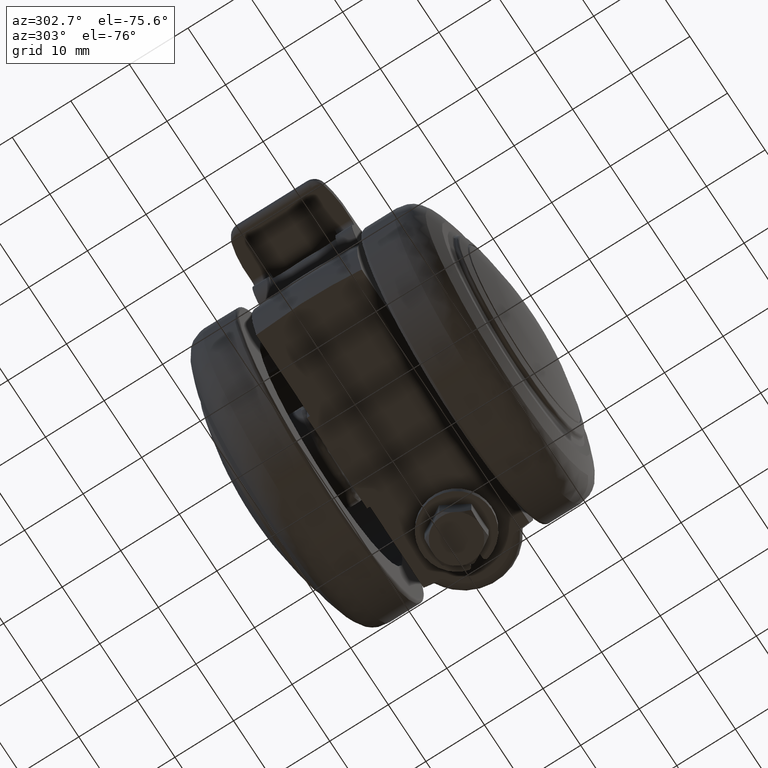
[diagram: clean part render]
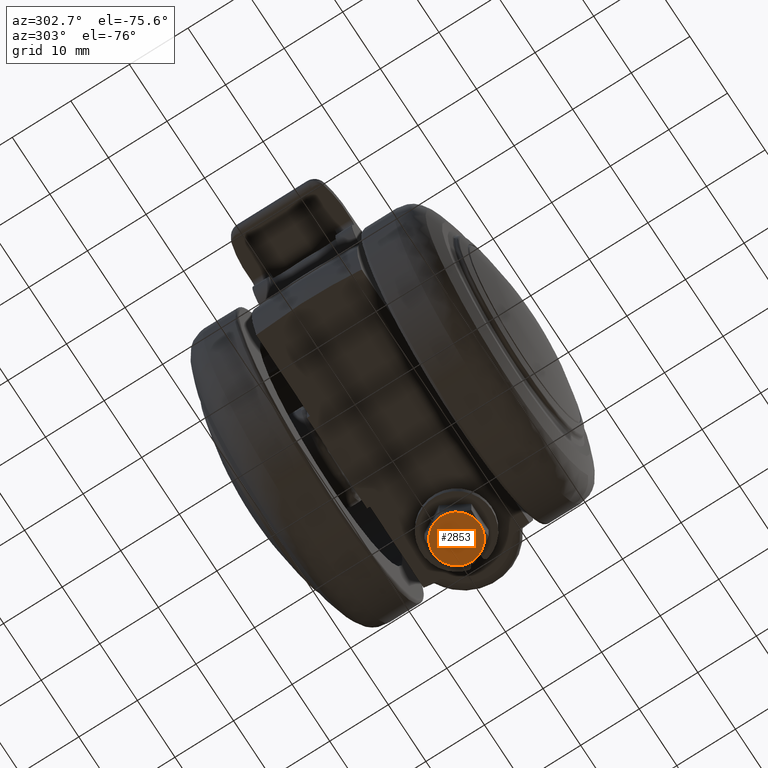
[diagram: same view with one face highlighted and labeled with its STEP entity id]
A machine part, auxiliary view. The second image highlights one B-rep face of the part: STEP entity #2853.
In plain terms, the highlighted face is a freeform B-spline surface patch.
Its self-contained STEP definition (entity closure, byte-faithful):
#2756=CARTESIAN_POINT('',(12.600400009850510,4.399599984494448,-15.500000000000000));
#2757=CARTESIAN_POINT('',(21.399599761957901,4.399599984494448,-15.500000000000000));
#2758=CARTESIAN_POINT('',(12.600400009850510,-4.399600199071169,-15.500000000000000));
#2759=CARTESIAN_POINT('',(21.399599761957901,-4.399600199071169,-15.500000000000000));
#2760=B_SPLINE_SURFACE_WITH_KNOTS('',1,1,((#2756,#2758),(#2757,#2759)),.UNSPECIFIED.,.F.,.F.,.U.,(2,2),(2,2),(0.0,8.799199752107393),(0.0,8.799200183565617),.UNSPECIFIED.);
#2761=CARTESIAN_POINT('',(13.535898442431121,-1.999999900287695,-15.500000000000000));
#2762=VERTEX_POINT('',#2761);
#2763=CARTESIAN_POINT('',(17.0,-4.0,-15.500000000000000));
#2764=VERTEX_POINT('',#2763);
#2765=CARTESIAN_POINT('',(13.535898442431121,-1.999999900287695,-15.500000000000000));
#2766=CARTESIAN_POINT('',(14.690598884862199,-4.000000000000000,-15.500000000000005));
#2767=CARTESIAN_POINT('',(17.0,-4.0,-15.500000000000000));
#2775=(BOUNDED_CURVE()B_SPLINE_CURVE(2,(#2765,#2766,#2767),.UNSPECIFIED.,.F.,.U.)CURVE()GEOMETRIC_REPRESENTATION_ITEM()QUASI_UNIFORM_CURVE()RATIONAL_B_SPLINE_CURVE((1.0,0.866025400186379,1.0))REPRESENTATION_ITEM(''));
#2776=EDGE_CURVE('',#2762,#2764,#2775,.T.);
#2777=ORIENTED_EDGE('',*,*,#2776,.F.);
#2778=CARTESIAN_POINT('',(13.535898442431121,1.999999900287695,-15.500000000000000));
#2779=VERTEX_POINT('',#2778);
#2780=CARTESIAN_POINT('',(13.535898442431121,1.999999900287695,-15.500000000000000));
#2781=CARTESIAN_POINT('',(12.381197884862296,4.336809E-016,-15.499999999999995));
#2782=CARTESIAN_POINT('',(13.535898442431121,-1.999999900287695,-15.500000000000000));
#2790=(BOUNDED_CURVE()B_SPLINE_CURVE(2,(#2780,#2781,#2782),.UNSPECIFIED.,.F.,.U.)CURVE()GEOMETRIC_REPRESENTATION_ITEM()QUASI_UNIFORM_CURVE()RATIONAL_B_SPLINE_CURVE((1.0,0.866025410980558,1.0))REPRESENTATION_ITEM(''));
#2791=EDGE_CURVE('',#2779,#2762,#2790,.T.);
#2792=ORIENTED_EDGE('',*,*,#2791,.F.);
#2793=CARTESIAN_POINT('',(17.0,4.0,-15.500000000000000));
#2794=VERTEX_POINT('',#2793);
#2795=CARTESIAN_POINT('',(17.0,4.0,-15.500000000000000));
#2796=CARTESIAN_POINT('',(14.690598884862199,4.000000000000000,-15.500000000000005));
#2797=CARTESIAN_POINT('',(13.535898442431121,1.999999900287695,-15.500000000000000));
#2805=(BOUNDED_CURVE()B_SPLINE_CURVE(2,(#2795,#2796,#2797),.UNSPECIFIED.,.F.,.U.)CURVE()GEOMETRIC_REPRESENTATION_ITEM()QUASI_UNIFORM_CURVE()RATIONAL_B_SPLINE_CURVE((1.0,0.866025400186379,1.0))REPRESENTATION_ITEM(''));
#2806=EDGE_CURVE('',#2794,#2779,#2805,.T.);
#2807=ORIENTED_EDGE('',*,*,#2806,.F.);
#2808=CARTESIAN_POINT('',(20.464101557568650,2.000000766313230,-15.500000000000000));
#2809=VERTEX_POINT('',#2808);
#2810=CARTESIAN_POINT('',(20.464101557568650,2.000000766313230,-15.500000000000000));
#2811=CARTESIAN_POINT('',(19.309400615137708,4.000000000000001,-15.499999999999996));
#2812=CARTESIAN_POINT('',(17.0,4.0,-15.500000000000000));
#2820=(BOUNDED_CURVE()B_SPLINE_CURVE(2,(#2810,#2811,#2812),.UNSPECIFIED.,.F.,.U.)CURVE()GEOMETRIC_REPRESENTATION_ITEM()QUASI_UNIFORM_CURVE()RATIONAL_B_SPLINE_CURVE((1.0,0.866025447061387,1.0))REPRESENTATION_ITEM(''));
#2821=EDGE_CURVE('',#2809,#2794,#2820,.T.);
#2822=ORIENTED_EDGE('',*,*,#2821,.F.);
#2823=CARTESIAN_POINT('',(20.464101557568650,-2.000000766313230,-15.500000000000000));
#2824=VERTEX_POINT('',#2823);
#2825=CARTESIAN_POINT('',(20.464101557568650,-2.000000766313230,-15.500000000000000));
#2826=CARTESIAN_POINT('',(21.618802615137938,-4.336809E-016,-15.500000000000000));
#2827=CARTESIAN_POINT('',(20.464101557568650,2.000000766313230,-15.500000000000000));
#2835=(BOUNDED_CURVE()B_SPLINE_CURVE(2,(#2825,#2826,#2827),.UNSPECIFIED.,.F.,.U.)CURVE()GEOMETRIC_REPRESENTATION_ITEM()QUASI_UNIFORM_CURVE()RATIONAL_B_SPLINE_CURVE((1.0,0.866025317230523,1.0))REPRESENTATION_ITEM(''));
#2836=EDGE_CURVE('',#2824,#2809,#2835,.T.);
#2837=ORIENTED_EDGE('',*,*,#2836,.F.);
#2838=CARTESIAN_POINT('',(17.0,-4.0,-15.500000000000000));
#2839=CARTESIAN_POINT('',(19.309400615137708,-4.000000000000001,-15.499999999999996));
#2840=CARTESIAN_POINT('',(20.464101557568650,-2.000000766313230,-15.500000000000000));
#2848=(BOUNDED_CURVE()B_SPLINE_CURVE(2,(#2838,#2839,#2840),.UNSPECIFIED.,.F.,.U.)CURVE()GEOMETRIC_REPRESENTATION_ITEM()QUASI_UNIFORM_CURVE()RATIONAL_B_SPLINE_CURVE((1.0,0.866025447061387,1.0))REPRESENTATION_ITEM(''));
#2849=EDGE_CURVE('',#2764,#2824,#2848,.T.);
#2850=ORIENTED_EDGE('',*,*,#2849,.F.);
#2851=EDGE_LOOP('',(#2777,#2792,#2807,#2822,#2837,#2850));
#2852=FACE_OUTER_BOUND('',#2851,.T.);
#2853=ADVANCED_FACE('',(#2852),#2760,.T.);